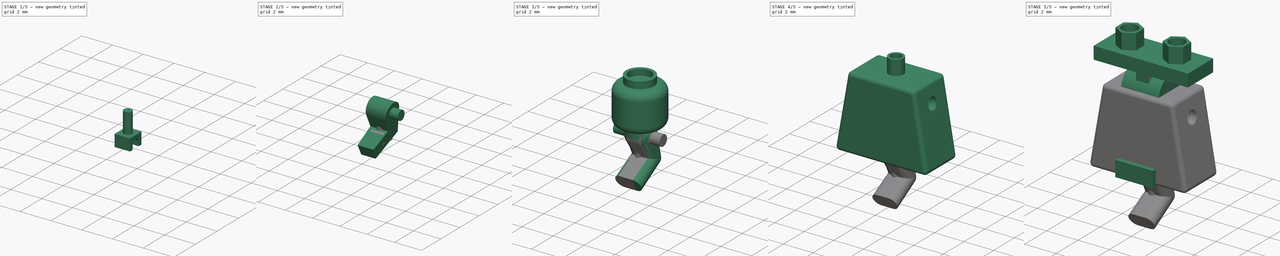
[diagram: build sequence overview — one tinted view per stage of 5, left to right]
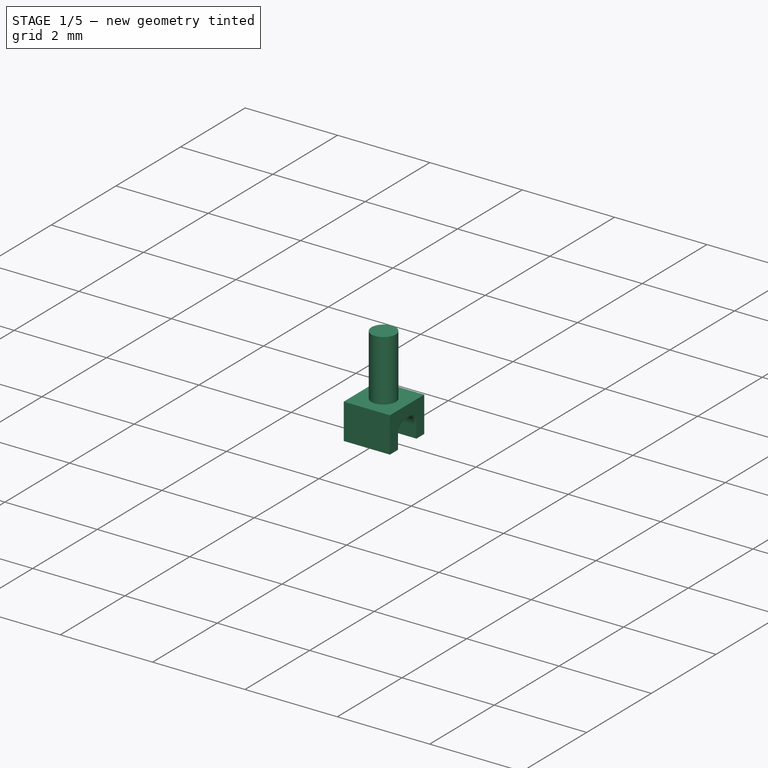
[diagram: stage 1 of 5 — iso view after this stage's code; geometry added in this stage tinted green]
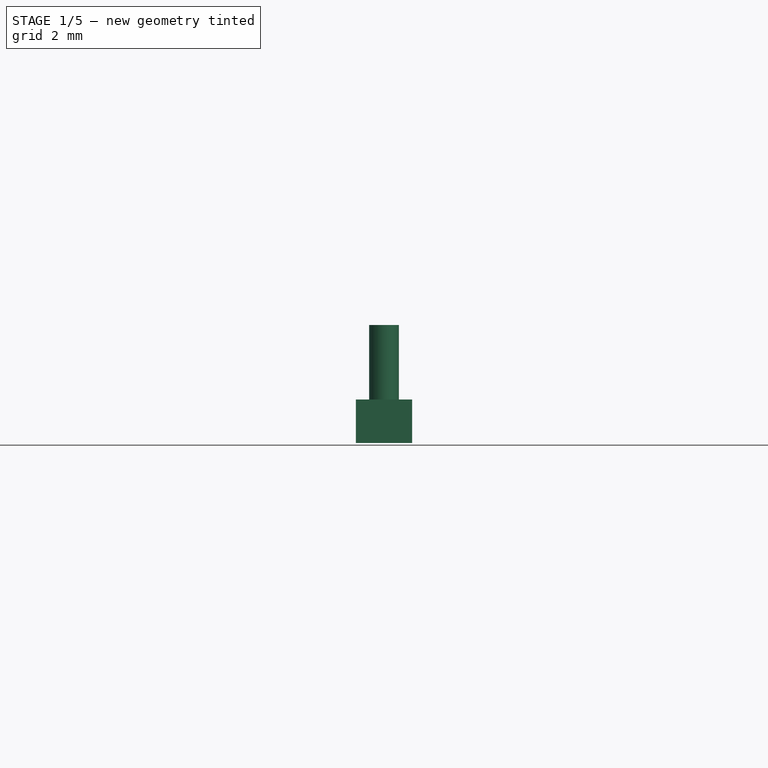
[diagram: stage 1 of 5 — front view after this stage's code; geometry added in this stage tinted green]
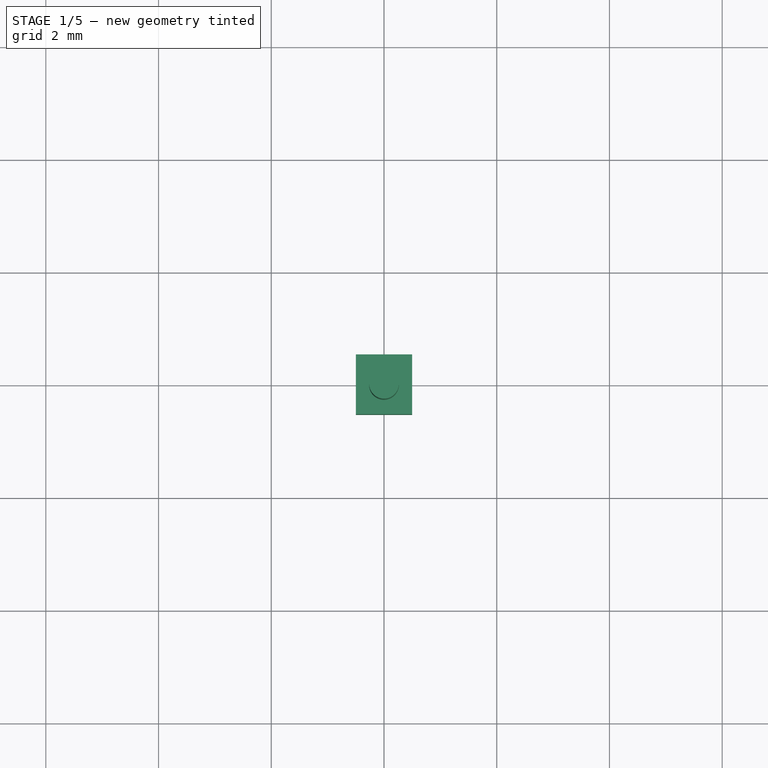
[diagram: stage 1 of 5 — top view after this stage's code; geometry added in this stage tinted green]
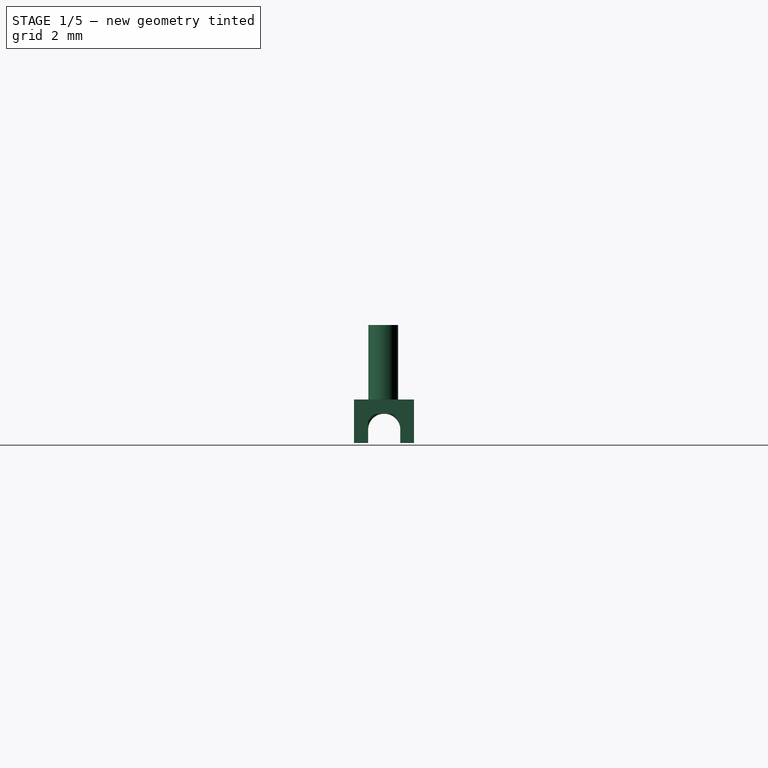
[diagram: stage 1 of 5 — right view after this stage's code; geometry added in this stage tinted green]
FCSTD DOCUMENT  (FreeCAD 0.18.4R)
Label: Lego basic Doll
Comment: From FreeCAD Parts Library: https://github.com/FreeCAD/FreeCAD-library
License: Creative Commons Attribution 3.0
LicenseURL: https://creativecommons.org/licenses/by/3.0/
objects: Sketcher::SketchObject×20, PartDesign::Pad×13, PartDesign::Body×9, PartDesign::Fillet×7, App::Part×5, PartDesign::Pocket×3, PartDesign::Revolution×3, Spreadsheet::Sheet×1, PartDesign::Line×1, PartDesign::Groove×1, PartDesign::Mirrored×1
note: 78 computed .brp shape members not serialized (recipe doc carries the construction recipe); baked Part::Feature solids carry a one-line shape summary decoded from their .brp

FEATURE [PartDesign::Body] Body007
  Group = -> [Sketch013,Pad009,Sketch014,Pocket002,Sketch015,Pad010,Fillet002]
  Origin = -> Origin012
  Placement = pos=(-3.35,0,0) rot=(0,0,1;0rad)
  Tip = -> Fillet002
FEATURE [App::Part] Part002  label="Brazo"
  Group = -> [Body003,Body007]
  License = Creative Commons Attribution 3.0
  LicenseURL = https://creativecommons.org/licenses/by/3.0/
  Origin = -> Origin002
  Placement = pos=(0,0,10.7) rot=(0,0,1;0rad)
FEATURE [Sketcher::SketchObject] Sketch016
  MapMode = 5
  Placement = pos=(0,0,0) rot=(0.57735,0.57735,0.57735;2.0944rad)
  Support = -> [YZ_Plane007]
  sketch-geometry (4):
    g0: LineSegment StartX=0 StartY=0 StartZ=0 EndX=0.263449 EndY=0 EndZ=0
    g1: LineSegment StartX=0.263449 StartY=0 StartZ=0 EndX=0.263449 EndY=-1.5 EndZ=0
    g2: LineSegment StartX=0.263449 StartY=-1.5 StartZ=0 EndX=0 EndY=-1.5 EndZ=0
    g3: LineSegment StartX=0 StartY=-1.5 StartZ=0 EndX=0 EndY=0 EndZ=0
  constraints (10):
    c: Coincident(g0,g1)
    c: Coincident(g1,g2)
    c: Coincident(g2,g3)
    c: Coincident(g3,g0)
    c: Horizontal(g2)
    c: Vertical(g1)
    c: Vertical(g3)
    c: Coincident(g0,g-1)
    c: Horizontal(g0)
    c: DistanceY(g1,g1) = 1.5
FEATURE [PartDesign::Revolution] Revolution001
  Angle = 360
  Axis = (-2e-16,3e-16,1)
  Base = (0,0,0)
  Placement = pos=(0,0,0) rot=(0.57735,0.57735,0.57735;2.0944rad)
  Profile = -> Sketch016
  ReferenceAxis = -> Sketch016 [V_Axis]
  Refine = true
  Reversed = true
FEATURE [Sketcher::SketchObject] Sketch017
  MapMode = 5
  Placement = pos=(0,0,0) rot=(0.57735,0.57735,0.57735;2.0944rad)
  Support = -> [YZ_Plane007]
  sketch-geometry (8):
    g0: LineSegment StartX=-0.518149 StartY=-1.32181 StartZ=0 EndX=0.54456 EndY=-1.32181 EndZ=0
    g1: LineSegment StartX=0.54456 StartY=-1.32181 StartZ=0 EndX=0.54456 EndY=-2.09192 EndZ=0
    g2: LineSegment StartX=0.54456 StartY=-2.09192 StartZ=0 EndX=0.302218 EndY=-2.09192 EndZ=0
    g3: LineSegment StartX=-0.518149 StartY=-2.09192 StartZ=0 EndX=-0.518149 EndY=-1.32181 EndZ=0
    g4: LineSegment StartX=0.302218 StartY=-2.09192 StartZ=0 EndX=0.302218 EndY=-1.5753 EndZ=0
    g5: LineSegment StartX=0.302218 StartY=-1.5753 StartZ=0 EndX=-0.26863 EndY=-1.5753 EndZ=0
    g6: LineSegment StartX=-0.26863 StartY=-1.5753 StartZ=0 EndX=-0.26863 EndY=-2.09192 EndZ=0
    g7: LineSegment StartX=-0.26863 StartY=-2.09192 StartZ=0 EndX=-0.518149 EndY=-2.09192 EndZ=0
  constraints (16):
    c: Coincident(g0,g1)
    c: Coincident(g1,g2)
    c: Coincident(g7,g3)
    c: Coincident(g3,g0)
    c: Horizontal(g0)
    c: Horizontal(g2)
    c: Vertical(g1)
    c: Vertical(g3)
    c: Coincident(g4,g5)
    c: Coincident(g5,g6)
    c: Horizontal(g5)
    c: Vertical(g4)
    c: Vertical(g6)
    c: PointOnObject(g6,g2)
    c: PointOnObject(g2,g4)
    c: Tangent(g2,g7)
FEATURE [PartDesign::Pad] Pad011
  BaseFeature = -> Revolution001
  Length = 1
  Length2 = 100
  Midplane = true
  Placement = pos=(0,0,0) rot=(0.57735,0.57735,0.57735;2.0944rad)
  Profile = -> Sketch017
  Refine = true
  Type = 0
FEATURE [PartDesign::Body] Body002
  Group = -> [Sketch016,Revolution001,Sketch017,Pad011,Fillet003,Fillet004]
  Origin = -> Origin007
  Placement = pos=(3.5,0,0) rot=(0,0,1;0rad)
  Tip = -> Fillet004
FEATURE [Sketcher::SketchObject] Sketch018
  MapMode = 5
  Placement = pos=(0,0,0) rot=(0.57735,0.57735,0.57735;2.0944rad)
  Support = -> [YZ_Plane013]
  sketch-geometry (4):
    g0: LineSegment StartX=0 StartY=0 StartZ=0 EndX=0.263449 EndY=0 EndZ=0
    g1: LineSegment StartX=0.263449 StartY=0 StartZ=0 EndX=0.263449 EndY=-1.5 EndZ=0
    g2: LineSegment StartX=0.263449 StartY=-1.5 StartZ=0 EndX=0 EndY=-1.5 EndZ=0
    g3: LineSegment StartX=0 StartY=-1.5 StartZ=0 EndX=0 EndY=0 EndZ=0
  constraints (10):
    c: Coincident(g0,g1)
    c: Coincident(g1,g2)
    c: Coincident(g2,g3)
    c: Coincident(g3,g0)
    c: Horizontal(g2)
    c: Vertical(g1)
    c: Vertical(g3)
    c: Coincident(g0,g-1)
    c: Horizontal(g0)
    c: DistanceY(g1,g1) = 1.5
FEATURE [Sketcher::SketchObject] Sketch019
  MapMode = 5
  Placement = pos=(0,0,0) rot=(0.57735,0.57735,0.57735;2.0944rad)
  Support = -> [YZ_Plane013]
  sketch-geometry (8):
    g0: LineSegment StartX=-0.518149 StartY=-1.32181 StartZ=0 EndX=0.54456 EndY=-1.32181 EndZ=0
    g1: LineSegment StartX=0.54456 StartY=-1.32181 StartZ=0 EndX=0.54456 EndY=-2.09192 EndZ=0
    g2: LineSegment StartX=0.54456 StartY=-2.09192 StartZ=0 EndX=0.302218 EndY=-2.09192 EndZ=0
    g3: LineSegment StartX=-0.518149 StartY=-2.09192 StartZ=0 EndX=-0.518149 EndY=-1.32181 EndZ=0
    g4: LineSegment StartX=0.302218 StartY=-2.09192 StartZ=0 EndX=0.302218 EndY=-1.5753 EndZ=0
    g5: LineSegment StartX=0.302218 StartY=-1.5753 StartZ=0 EndX=-0.26863 EndY=-1.5753 EndZ=0
    g6: LineSegment StartX=-0.26863 StartY=-1.5753 StartZ=0 EndX=-0.26863 EndY=-2.09192 EndZ=0
    g7: LineSegment StartX=-0.26863 StartY=-2.09192 StartZ=0 EndX=-0.518149 EndY=-2.09192 EndZ=0
  constraints (16):
    c: Coincident(g0,g1)
    c: Coincident(g1,g2)
    c: Coincident(g7,g3)
    c: Coincident(g3,g0)
    c: Horizontal(g0)
    c: Horizontal(g2)
    c: Vertical(g1)
    c: Vertical(g3)
    c: Coincident(g4,g5)
    c: Coincident(g5,g6)
    c: Horizontal(g5)
    c: Vertical(g4)
    c: Vertical(g6)
    c: PointOnObject(g6,g2)
    c: PointOnObject(g2,g4)
    c: Tangent(g2,g7)
FEATURE [PartDesign::Revolution] Revolution002
  Angle = 360
  Axis = (-2e-16,3e-16,1)
  Base = (0,0,0)
  Placement = pos=(0,0,0) rot=(0.57735,0.57735,0.57735;2.0944rad)
  Profile = -> Sketch018
  ReferenceAxis = -> Sketch018 [V_Axis]
  Refine = true
  Reversed = true
FEATURE [PartDesign::Pad] Pad012
  BaseFeature = -> Revolution002
  Length = 1
  Length2 = 100
  Midplane = true
  Placement = pos=(0,0,0) rot=(0.57735,0.57735,0.57735;2.0944rad)
  Profile = -> Sketch019
  Refine = true
  Type = 0
FEATURE [PartDesign::Fillet] Fillet006
  Base = -> Pad012 [Edge7,Edge4,Edge26,Edge27]
  BaseFeature = -> Pad012
  Placement = pos=(0,0,0) rot=(0.57735,0.57735,0.57735;2.0944rad)
  Radius = 0.28
FEATURE [PartDesign::Fillet] Fillet005
  Base = -> Fillet006 [Face8,Face5,Face13,Face12]
  BaseFeature = -> Fillet006
  Placement = pos=(0,0,0) rot=(0.57735,0.57735,0.57735;2.0944rad)
  Radius = 0.05
FEATURE [PartDesign::Body] Body008
  Group = -> [Sketch018,Revolution002,Sketch019,Pad012,Fillet006,Fillet005]
  Origin = -> Origin013
  Placement = pos=(-3.5,0,0) rot=(0,0,1;0rad)
  Tip = -> Fillet005
FEATURE [App::Part] Part003  label="Mano"
  Group = -> [Body002,Body008]
  License = Creative Commons Attribution 3.0
  LicenseURL = https://creativecommons.org/licenses/by/3.0/
  Origin = -> Origin003
  Placement = pos=(0,-0.5,8.7) rot=(-1,0,0;1.0472rad)
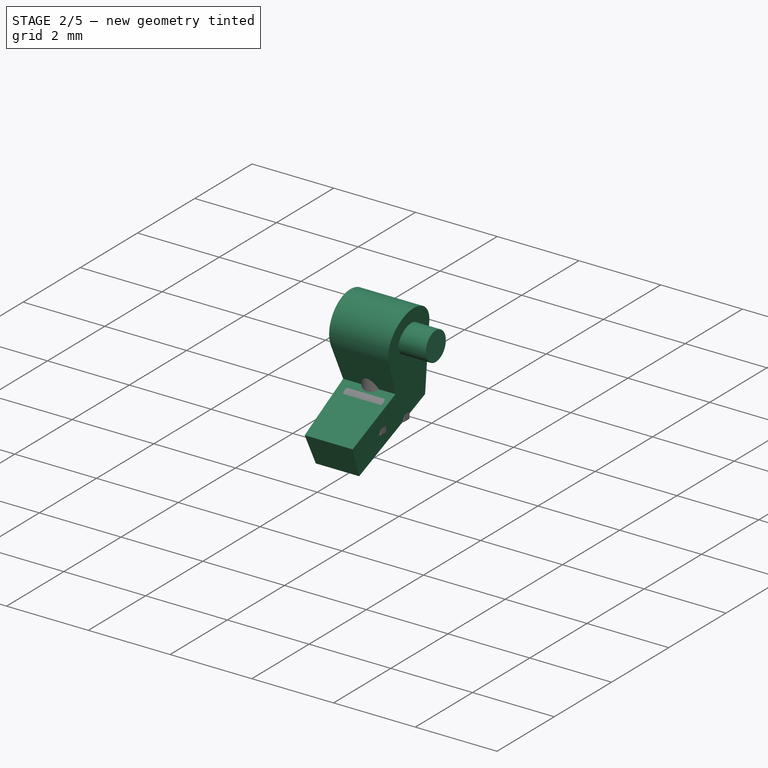
[diagram: stage 2 of 5 — iso view after this stage's code; geometry added in this stage tinted green]
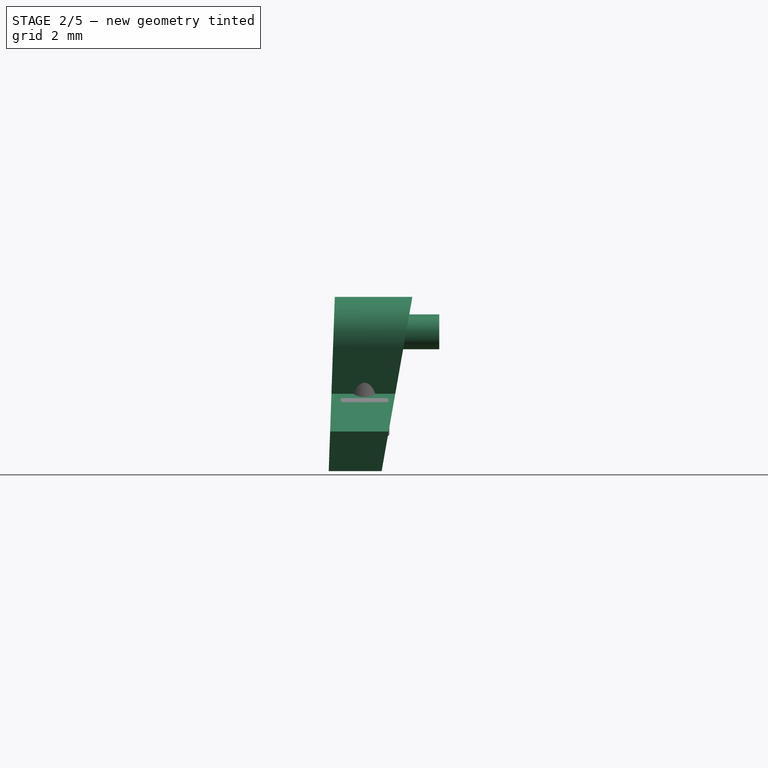
[diagram: stage 2 of 5 — front view after this stage's code; geometry added in this stage tinted green]
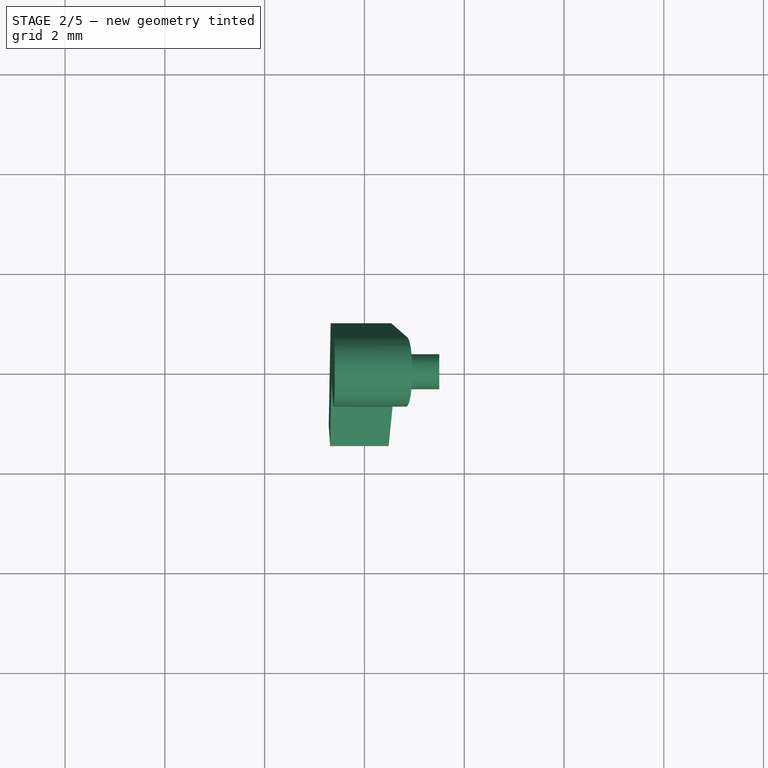
[diagram: stage 2 of 5 — top view after this stage's code; geometry added in this stage tinted green]
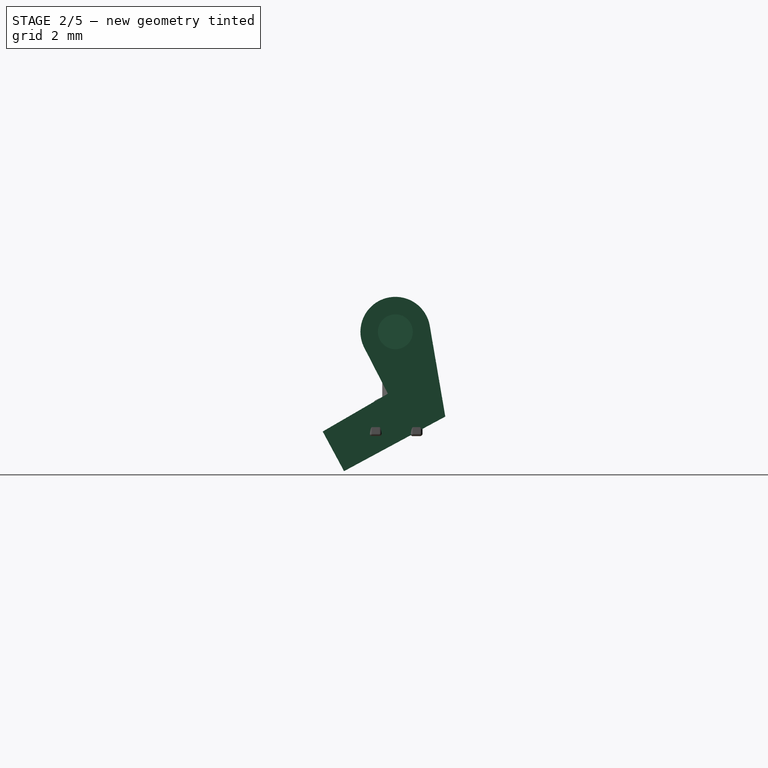
[diagram: stage 2 of 5 — right view after this stage's code; geometry added in this stage tinted green]
FEATURE [PartDesign::Body] Body003
  Group = -> [Sketch010,Pad007,Sketch011,Pocket001,Sketch012,Pad008,Fillet001]
  Origin = -> Origin008
  Placement = pos=(3.25,0,0) rot=(0,0,1;0rad)
  Tip = -> Fillet001
FEATURE [Sketcher::SketchObject] Sketch013
  MapMode = 5
  Placement = pos=(0,0,0) rot=(0.57735,0.57735,0.57735;2.0944rad)
  Support = -> [YZ_Plane012]
  sketch-geometry (6):
    g0: LineSegment StartX=-0.622767 StartY=-0.319626 StartZ=0 EndX=-0.14988 EndY=-1.24101 EndZ=0
    g1: LineSegment StartX=-1.45624 StartY=-1.99889 StartZ=0 EndX=-1.02825 EndY=-2.79304 EndZ=0
    g2: LineSegment StartX=1.00094 StartY=-1.69945 StartZ=0 EndX=0.689974 EndY=0.11805 EndZ=0
    g3: LineSegment StartX=-0.14988 StartY=-1.24101 StartZ=0 EndX=-1.45624 EndY=-1.99889 EndZ=0
    g4: LineSegment StartX=1.00094 StartY=-1.69945 StartZ=0 EndX=-1.02825 EndY=-2.79304 EndZ=0
    g5: ArcOfCircle CenterX=0 CenterY=0 CenterZ=0 NormalX=0 NormalY=0 NormalZ=1 AngleXU=0 Radius=0.7 StartAngle=0.169452 EndAngle=3.61577
  constraints (9):
    c: Coincident(g3,g0)
    c: Coincident(g3,g1)
    c: Coincident(g4,g2)
    c: Coincident(g4,g1)
    c: Perpendicular(g1,g4)
    c: Tangent(g5,g0) = -1.5708
    c: Tangent(g5,g2) = -1.5708
    c: Coincident(g5,g-1)
    c: Radius(g5) = 0.7
FEATURE [Sketcher::SketchObject] Sketch014
  MapMode = 5
  Placement = pos=(0,0,0) rot=(1,0,0;1.5708rad)
  Support = -> [XZ_Plane012]
  sketch-geometry (8):
    g0: LineSegment StartX=-0.56719 StartY=1.46167 StartZ=0 EndX=-0.725199 EndY=-3.06313 EndZ=0
    g1: LineSegment StartX=-0.725199 StartY=-3.06313 StartZ=0 EndX=0.296878 EndY=-3.06313 EndZ=0
    g2: LineSegment StartX=0.296878 StartY=-3.06313 StartZ=0 EndX=1.09472 EndY=1.46167 EndZ=0
    g3: LineSegment StartX=1.09472 StartY=1.46167 StartZ=0 EndX=-0.56719 EndY=1.46167 EndZ=0
    g4: LineSegment StartX=-1.38529 StartY=4.53362 StartZ=0 EndX=1.38529 EndY=4.53362 EndZ=0
    g5: LineSegment StartX=1.38529 StartY=4.53362 StartZ=0 EndX=1.38529 EndY=-4.53362 EndZ=0
    g6: LineSegment StartX=1.38529 StartY=-4.53362 StartZ=0 EndX=-1.38529 EndY=-4.53362 EndZ=0
    g7: LineSegment StartX=-1.38529 StartY=-4.53362 StartZ=0 EndX=-1.38529 EndY=4.53362 EndZ=0
  constraints (17):
    c: Coincident(g0,g1)
    c: Horizontal(g1)
    c: Coincident(g1,g2)
    c: Coincident(g2,g3)
    c: Coincident(g3,g0)
    c: Coincident(g4,g5)
    c: Coincident(g5,g6)
    c: Coincident(g6,g7)
    c: Coincident(g7,g4)
    c: Horizontal(g4)
    c: Horizontal(g6)
    c: Vertical(g5)
    c: Vertical(g7)
    c: Symmetric(g4,g5,g-1)
    c: Horizontal(g3)
    c: Angle(g2,g1) = 1.74533
    c: Angle(g1,g0) = 1.53589
FEATURE [PartDesign::Pad] Pad009
  Length = 2
  Length2 = 100
  Midplane = true
  Placement = pos=(0,0,0) rot=(0.57735,0.57735,0.57735;2.0944rad)
  Profile = -> Sketch013
  Refine = true
  Type = 0
FEATURE [PartDesign::Pocket] Pocket002
  BaseFeature = -> Pad009
  Length = 5
  Length2 = 100
  Midplane = true
  Placement = pos=(0,0,0) rot=(0.57735,0.57735,0.57735;2.0944rad)
  Profile = -> Sketch014
  Refine = true
  Type = 1
FEATURE [Sketcher::SketchObject] Sketch015
  ExternalGeometry = -> [Pocket002]
  MapMode = 5
  Placement = pos=(0,0,0) rot=(0.57735,0.57735,0.57735;2.0944rad)
  Support = -> [YZ_Plane012]
  sketch-geometry (1):
    g0: Circle CenterX=0 CenterY=5e-16 CenterZ=0 NormalX=0 NormalY=0 NormalZ=1 AngleXU=0 Radius=0.35
  constraints (2):
    c: Coincident(g0,g-3)
    c: Radius(g0) = 0.35
FEATURE [PartDesign::Pad] Pad010
  BaseFeature = -> Pocket002
  Length = 1.5
  Length2 = 100
  Placement = pos=(0,0,0) rot=(0.57735,0.57735,0.57735;2.0944rad)
  Profile = -> Sketch015
  Refine = true
  Type = 0
FEATURE [PartDesign::Fillet] Fillet003
  Base = -> Pad011 [Edge7,Edge4,Edge26,Edge27]
  BaseFeature = -> Pad011
  Placement = pos=(0,0,0) rot=(0.57735,0.57735,0.57735;2.0944rad)
  Radius = 0.28
FEATURE [PartDesign::Fillet] Fillet004
  Base = -> Fillet003 [Face8,Face5,Face13,Face12]
  BaseFeature = -> Fillet003
  Placement = pos=(0,0,0) rot=(0.57735,0.57735,0.57735;2.0944rad)
  Radius = 0.05
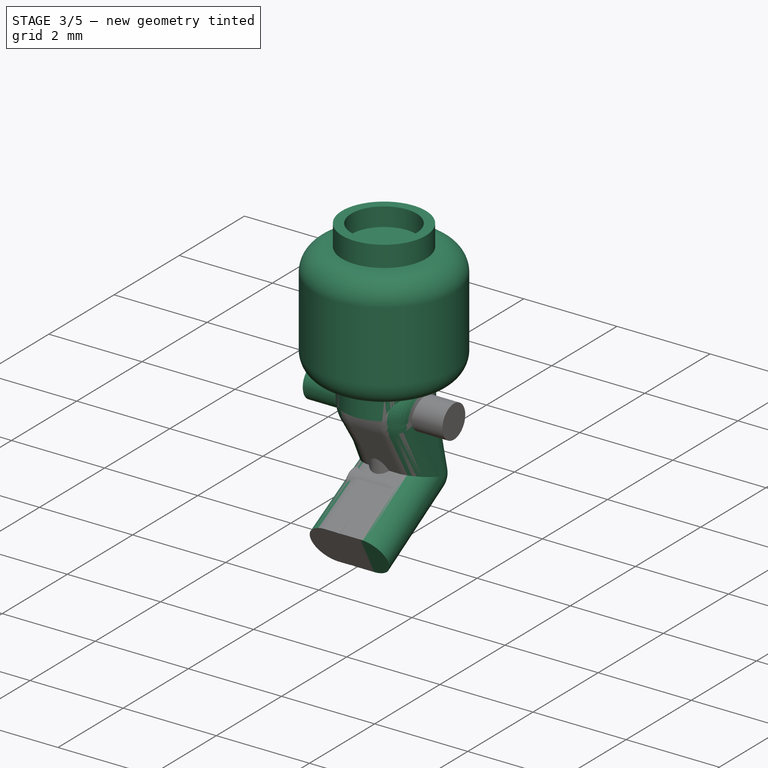
[diagram: stage 3 of 5 — iso view after this stage's code; geometry added in this stage tinted green]
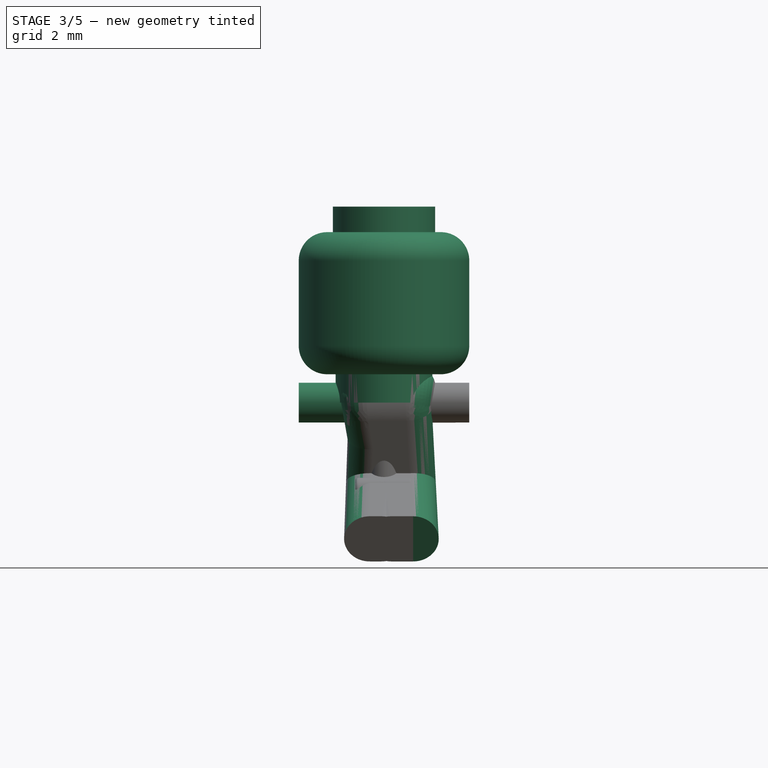
[diagram: stage 3 of 5 — front view after this stage's code; geometry added in this stage tinted green]
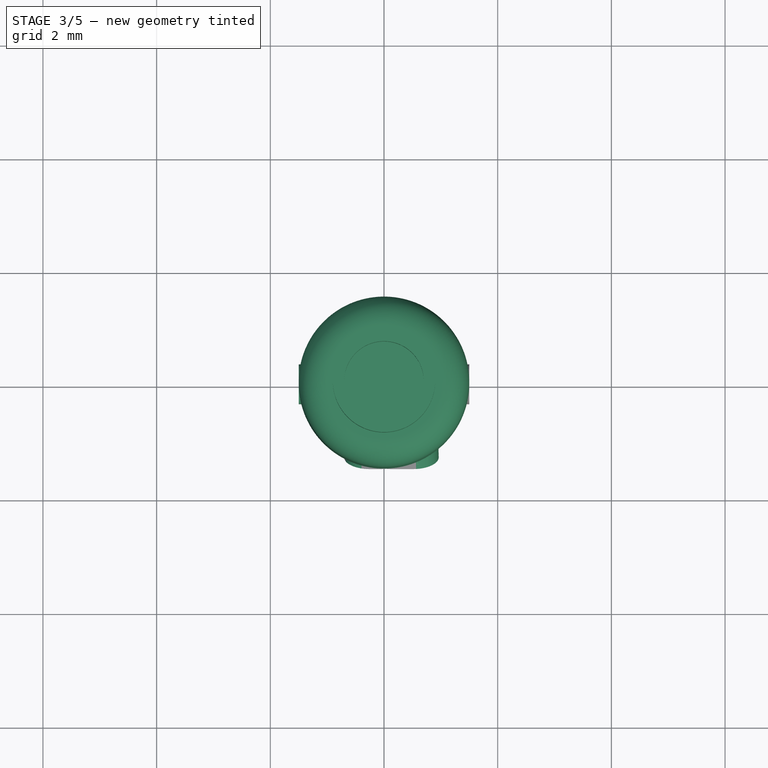
[diagram: stage 3 of 5 — top view after this stage's code; geometry added in this stage tinted green]
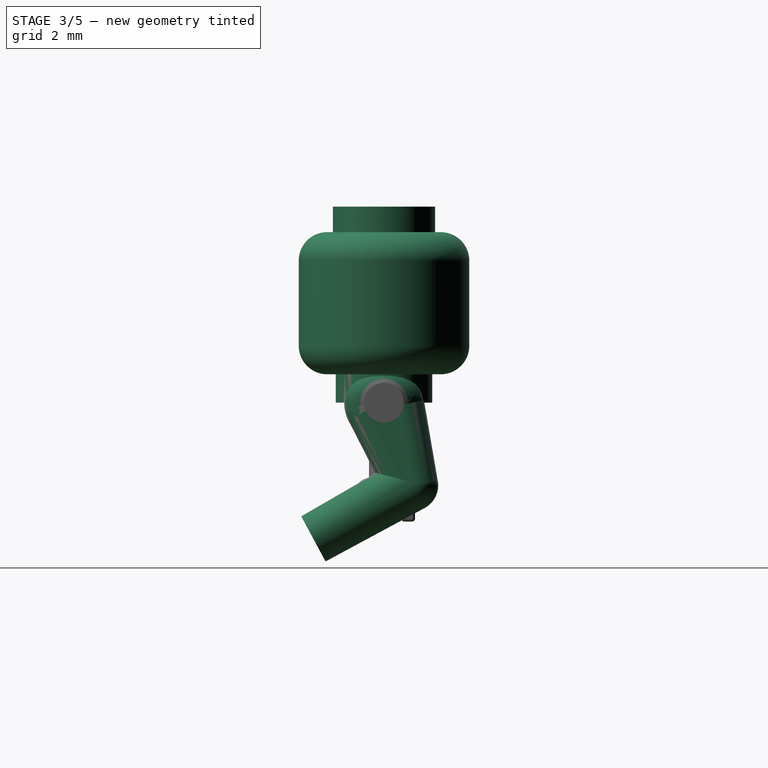
[diagram: stage 3 of 5 — right view after this stage's code; geometry added in this stage tinted green]
FEATURE [PartDesign::Body] Body001
  Group = -> [Sketch005,Pad005,Sketch006,Pocket,Sketch007,Pad006,Fillet,Sketch008,DatumLine,Groove,Mirrored]
  Origin = -> Origin006
  Tip = -> Mirrored
FEATURE [App::Part] Part001  label="Torso"
  Group = -> [Body001]
  License = Creative Commons Attribution 3.0
  LicenseURL = https://creativecommons.org/licenses/by/3.0/
  Origin = -> Origin001
  Placement = pos=(0,0,6.9) rot=(0,0,1;0rad)
FEATURE [Sketcher::SketchObject] Sketch009
  MapMode = 5
  Placement = pos=(0,0,0) rot=(1,0,0;1.5708rad)
  Support = -> [XZ_Plane005]
  sketch-geometry (14):
    g0: LineSegment StartX=0 StartY=1 StartZ=0 EndX=0.55 EndY=1 EndZ=0
    g1: LineSegment StartX=0.55 StartY=1 StartZ=0 EndX=0.55 EndY=0 EndZ=0
    g2: LineSegment StartX=0.55 StartY=0 StartZ=0 EndX=0.85 EndY=0 EndZ=0
    g3: LineSegment StartX=0.85 StartY=0 StartZ=0 EndX=0.85 EndY=0.5 EndZ=0
    g4: LineSegment StartX=0.85 StartY=0.5 StartZ=0 EndX=1 EndY=0.5 EndZ=0
    g5: LineSegment StartX=1.5 StartY=1 StartZ=0 EndX=1.5 EndY=2.5 EndZ=0
    g6: LineSegment StartX=1 StartY=3 StartZ=0 EndX=0.9 EndY=3 EndZ=0
    g7: LineSegment StartX=0.9 StartY=3 StartZ=0 EndX=0.9 EndY=3.45 EndZ=0
    g8: LineSegment StartX=0.9 StartY=3.45 StartZ=0 EndX=0.7 EndY=3.45 EndZ=0
    g9: LineSegment StartX=0.7 StartY=3.45 StartZ=0 EndX=0.7 EndY=3.05 EndZ=0
    g10: LineSegment StartX=0.7 StartY=3.05 StartZ=0 EndX=0 EndY=3.05 EndZ=0
    g11: LineSegment StartX=0 StartY=3.05 StartZ=0 EndX=0 EndY=1 EndZ=0
    g12: ArcOfCircle CenterX=1 CenterY=1 CenterZ=0 NormalX=0 NormalY=0 NormalZ=1 AngleXU=0 Radius=0.5 StartAngle=4.71239 EndAngle=6.28319
    g13: ArcOfCircle CenterX=1 CenterY=2.5 CenterZ=0 NormalX=0 NormalY=0 NormalZ=1 AngleXU=0 Radius=0.5 StartAngle=0 EndAngle=1.5708
  constraints (40):
    c: Horizontal(g0)
    c: Coincident(g0,g1)
    c: PointOnObject(g1,g-1)
    c: Vertical(g1)
    c: Coincident(g1,g2)
    c: PointOnObject(g2,g-1)
    c: Coincident(g2,g3)
    c: Vertical(g3)
    c: Coincident(g3,g4)
    c: Horizontal(g4)
    c: Vertical(g5)
    c: Horizontal(g6)
    c: Coincident(g6,g7)
    c: Vertical(g7)
    c: Coincident(g7,g8)
    c: Coincident(g8,g9)
    c: Vertical(g9)
    c: Coincident(g9,g10)
    c: Coincident(g10,g11)
    c: Vertical(g11)
    c: Coincident(g0,g11)
    c: PointOnObject(g0,g-2)
    c: Horizontal(g10)
    c: Horizontal(g8)
    c: Tangent(g4,g12) = -1.5708
    c: Tangent(g5,g12) = -1.5708
    c: Tangent(g5,g13) = -1.5708
    c: Tangent(g6,g13) = -1.5708
    c: Equal(g13,g12)
    c: Radius(g13) = 0.5
    c: DistanceX(g10,g5) = 1.5
    c: DistanceX(g0,g1) = 0.55
    c: DistanceY(g3,g3) = 0.5
    c: DistanceX(g2,g2) = 0.3
    c: DistanceY(g2,g6) = 3
    c: DistanceX(g10,g8) = 0.7
    c: DistanceY(g9,g9) = 0.4
    c: DistanceY(g7,g7) = 0.45
    c: DistanceX(g10,g7) = 0.9
    c: DistanceY(g1,g1) = 1
FEATURE [PartDesign::Revolution] Revolution
  Angle = 360
  Axis = (0,2e-16,1)
  Base = (0,0,0)
  Placement = pos=(0,0,0) rot=(1,0,0;1.5708rad)
  Profile = -> Sketch009
  ReferenceAxis = -> Sketch009 [V_Axis]
  Refine = true
  Reversed = true
FEATURE [PartDesign::Body] Body
  Group = -> [Sketch009,Revolution]
  Origin = -> Origin005
  Tip = -> Revolution
FEATURE [App::Part] Part004  label="Cabeza"
  Group = -> [Body]
  License = Creative Commons Attribution 3.0
  LicenseURL = https://creativecommons.org/licenses/by/3.0/
  Origin = -> Origin004
  Placement = pos=(0,0,12) rot=(0,0,1;0rad)
FEATURE [Sketcher::SketchObject] Sketch010
  MapMode = 5
  Placement = pos=(0,0,0) rot=(0.57735,0.57735,0.57735;2.0944rad)
  Support = -> [YZ_Plane008]
  sketch-geometry (6):
    g0: LineSegment StartX=-0.622767 StartY=-0.319626 StartZ=0 EndX=-0.14988 EndY=-1.24101 EndZ=0
    g1: LineSegment StartX=-1.45624 StartY=-1.99889 StartZ=0 EndX=-1.02825 EndY=-2.79304 EndZ=0
    g2: LineSegment StartX=1.00094 StartY=-1.69945 StartZ=0 EndX=0.689974 EndY=0.11805 EndZ=0
    g3: LineSegment StartX=-0.14988 StartY=-1.24101 StartZ=0 EndX=-1.45624 EndY=-1.99889 EndZ=0
    g4: LineSegment StartX=1.00094 StartY=-1.69945 StartZ=0 EndX=-1.02825 EndY=-2.79304 EndZ=0
    g5: ArcOfCircle CenterX=0 CenterY=0 CenterZ=0 NormalX=0 NormalY=0 NormalZ=1 AngleXU=0 Radius=0.7 StartAngle=0.169452 EndAngle=3.61577
  constraints (9):
    c: Coincident(g3,g0)
    c: Coincident(g3,g1)
    c: Coincident(g4,g2)
    c: Coincident(g4,g1)
    c: Perpendicular(g1,g4)
    c: Tangent(g5,g0) = -1.5708
    c: Tangent(g5,g2) = -1.5708
    c: Coincident(g5,g-1)
    c: Radius(g5) = 0.7
FEATURE [PartDesign::Pad] Pad007
  Length = 2
  Length2 = 100
  Midplane = true
  Placement = pos=(0,0,0) rot=(0.57735,0.57735,0.57735;2.0944rad)
  Profile = -> Sketch010
  Refine = true
  Type = 0
FEATURE [Sketcher::SketchObject] Sketch011
  MapMode = 5
  Placement = pos=(0,0,0) rot=(1,0,0;1.5708rad)
  Support = -> [XZ_Plane008]
  sketch-geometry (8):
    g0: LineSegment StartX=-1.01303 StartY=1.46493 StartZ=0 EndX=-0.215741 EndY=-3.05672 EndZ=0
    g1: LineSegment StartX=-0.215741 StartY=-3.05672 StartZ=0 EndX=0.997341 EndY=-3.05672 EndZ=0
    g2: LineSegment StartX=0.997341 StartY=-3.05672 StartZ=0 EndX=0.760371 EndY=1.46493 EndZ=0
    g3: LineSegment StartX=0.760371 StartY=1.46493 StartZ=0 EndX=-1.01303 EndY=1.46493 EndZ=0
    g4: LineSegment StartX=-1.38529 StartY=4.53362 StartZ=0 EndX=1.38529 EndY=4.53362 EndZ=0
    g5: LineSegment StartX=1.38529 StartY=4.53362 StartZ=0 EndX=1.38529 EndY=-4.53362 EndZ=0
    g6: LineSegment StartX=1.38529 StartY=-4.53362 StartZ=0 EndX=-1.38529 EndY=-4.53362 EndZ=0
    g7: LineSegment StartX=-1.38529 StartY=-4.53362 StartZ=0 EndX=-1.38529 EndY=4.53362 EndZ=0
  constraints (17):
    c: Coincident(g0,g1)
    c: Horizontal(g1)
    c: Coincident(g1,g2)
    c: Coincident(g2,g3)
    c: Coincident(g3,g0)
    c: Coincident(g4,g5)
    c: Coincident(g5,g6)
    c: Coincident(g6,g7)
    c: Coincident(g7,g4)
    c: Horizontal(g4)
    c: Horizontal(g6)
    c: Vertical(g5)
    c: Vertical(g7)
    c: Symmetric(g4,g5,g-1)
    c: Angle(g1,g0) = 1.74533
    c: Horizontal(g3)
    c: Angle(g2,g1) = 1.51844
FEATURE [PartDesign::Pocket] Pocket001
  BaseFeature = -> Pad007
  Length = 5
  Length2 = 100
  Midplane = true
  Placement = pos=(0,0,0) rot=(0.57735,0.57735,0.57735;2.0944rad)
  Profile = -> Sketch011
  Refine = true
  Type = 1
FEATURE [Sketcher::SketchObject] Sketch012
  ExternalGeometry = -> [Pocket001]
  MapMode = 5
  Placement = pos=(0,0,0) rot=(0.57735,0.57735,0.57735;2.0944rad)
  Support = -> [YZ_Plane008]
  sketch-geometry (1):
    g0: Circle CenterX=0 CenterY=5e-16 CenterZ=0 NormalX=0 NormalY=0 NormalZ=1 AngleXU=0 Radius=0.35
  constraints (2):
    c: Coincident(g0,g-3)
    c: Radius(g0) = 0.35
FEATURE [PartDesign::Pad] Pad008
  BaseFeature = -> Pocket001
  Length = 1.5
  Length2 = 100
  Placement = pos=(0,0,0) rot=(0.57735,0.57735,0.57735;2.0944rad)
  Profile = -> Sketch012
  Refine = true
  Reversed = true
  Type = 0
FEATURE [PartDesign::Fillet] Fillet001
  Base = -> Pad008 [Edge16,Edge15,Edge13,Edge8,Edge7,Edge6,Edge4]
  BaseFeature = -> Pad008
  Placement = pos=(0,0,0) rot=(0.57735,0.57735,0.57735;2.0944rad)
  Radius = 0.45
FEATURE [PartDesign::Fillet] Fillet002
  Base = -> Pad010 [Edge15,Edge7,Edge6,Edge4,Edge14,Edge9,Edge12]
  BaseFeature = -> Pad010
  Placement = pos=(0,0,0) rot=(0.57735,0.57735,0.57735;2.0944rad)
  Radius = 0.45
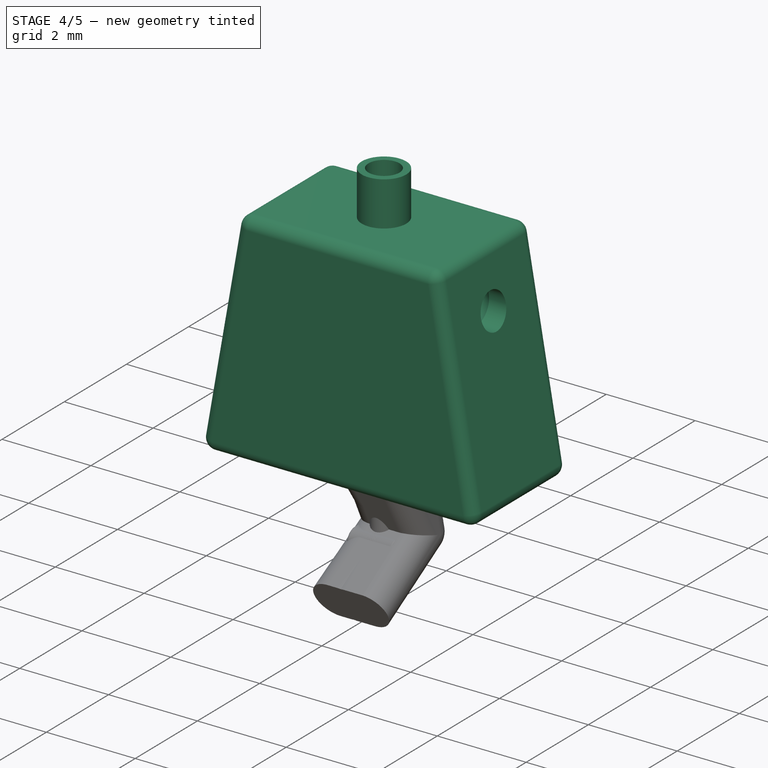
[diagram: stage 4 of 5 — iso view after this stage's code; geometry added in this stage tinted green]
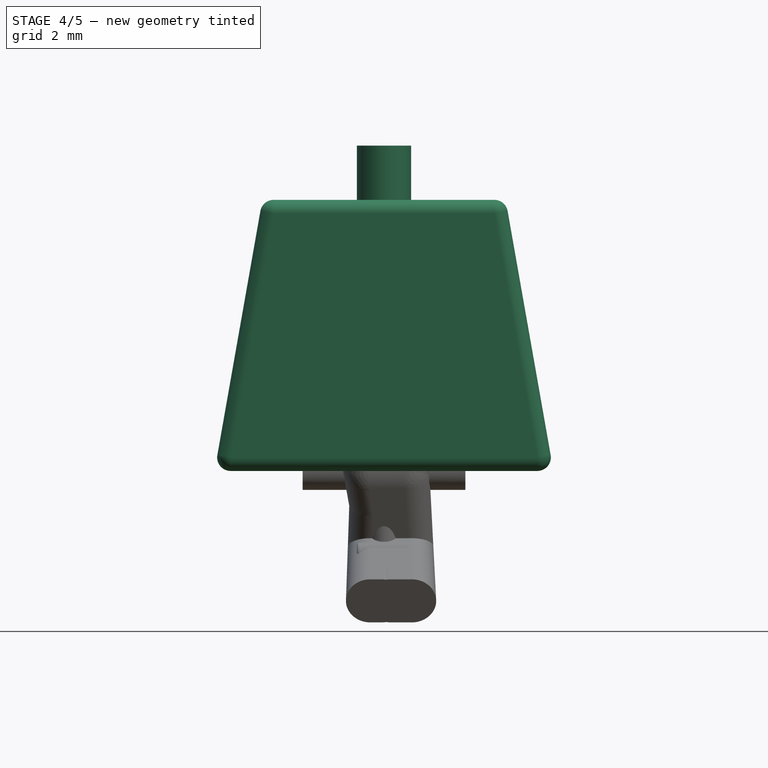
[diagram: stage 4 of 5 — front view after this stage's code; geometry added in this stage tinted green]
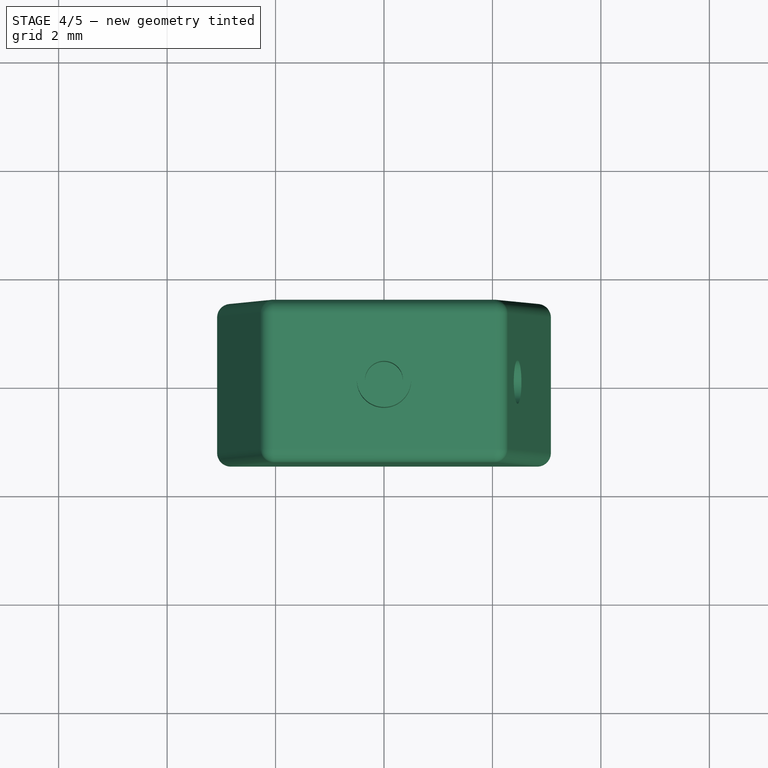
[diagram: stage 4 of 5 — top view after this stage's code; geometry added in this stage tinted green]
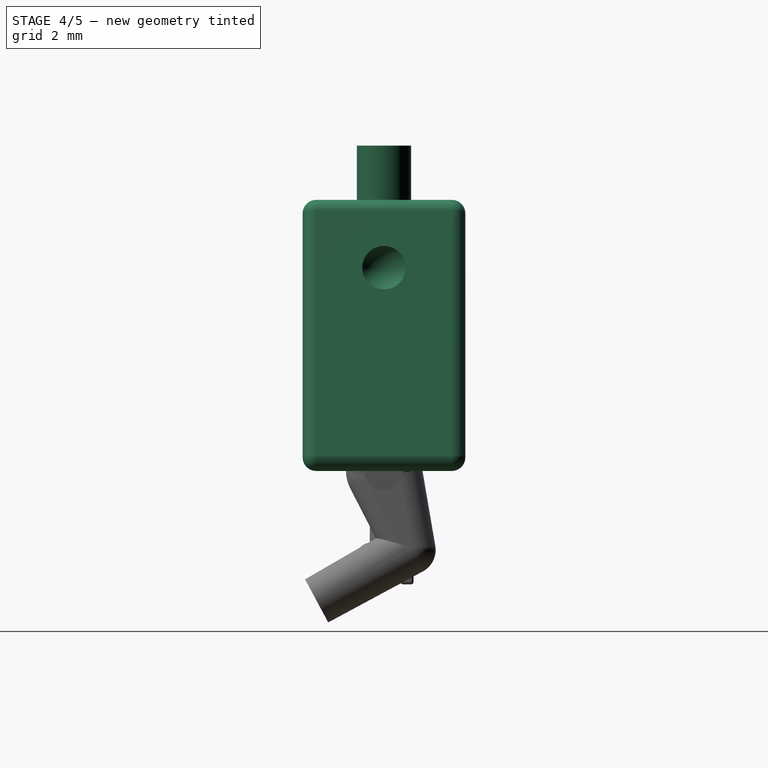
[diagram: stage 4 of 5 — right view after this stage's code; geometry added in this stage tinted green]
FEATURE [PartDesign::Body] Body006
  Group = -> [Sketch,Pad002,Sketch003,Pad003,Sketch004,Pad004]
  Origin = -> Origin011
  Tip = -> Pad004
FEATURE [App::Part] Part  label="Piernas"
  Group = -> [Body004,Body005,Body006]
  License = Creative Commons Attribution 3.0
  LicenseURL = https://creativecommons.org/licenses/by/3.0/
  Origin = -> Origin
FEATURE [Sketcher::SketchObject] Sketch005
  MapMode = 5
  Placement = pos=(0,0,0) rot=(1,0,0;1.5708rad)
  Support = -> [XZ_Plane006]
  sketch-geometry (4):
    g0: LineSegment StartX=-3.125 StartY=0 StartZ=0 EndX=-2.24337 EndY=5 EndZ=0
    g1: LineSegment StartX=-2.24337 StartY=5 StartZ=0 EndX=2.24337 EndY=5 EndZ=0
    g2: LineSegment StartX=2.24337 StartY=5 StartZ=0 EndX=3.125 EndY=0 EndZ=0
    g3: LineSegment StartX=3.125 StartY=0 StartZ=0 EndX=-3.125 EndY=0 EndZ=0
  constraints (11):
    c: PointOnObject(g0,g-1)
    c: Coincident(g0,g1)
    c: Horizontal(g1)
    c: Coincident(g1,g2)
    c: Coincident(g2,g3)
    c: Coincident(g3,g0)
    c: Symmetric(g0,g2,g-2)
    c: Equal(g0,g2)
    c: DistanceX(g3,g3) = 6.25
    c: Angle(g3,g0) = 1.39626
    c: DistanceY(g0,g0) = 5
FEATURE [PartDesign::Pad] Pad005
  Length = 3
  Length2 = 100
  Midplane = true
  Placement = pos=(0,0,0) rot=(1,0,0;1.5708rad)
  Profile = -> Sketch005
  Refine = true
  Type = 0
FEATURE [Sketcher::SketchObject] Sketch006
  MapMode = 5
  Placement = pos=(0,0,0) rot=(1,0,0;3.14159rad)
  Support = -> [Pad005]
  sketch-geometry (14):
    g0: LineSegment StartX=-0.80718 StartY=0.4 StartZ=0 EndX=-1.5 EndY=0.8 EndZ=0
    g1: LineSegment StartX=-1.5 StartY=0.8 StartZ=0 EndX=-2.19282 EndY=0.4 EndZ=0
    g2: LineSegment StartX=-2.19282 StartY=0.4 StartZ=0 EndX=-2.19282 EndY=-0.4 EndZ=0
    g3: LineSegment StartX=-2.19282 StartY=-0.4 StartZ=0 EndX=-1.5 EndY=-0.8 EndZ=0
    g4: LineSegment StartX=-1.5 StartY=-0.8 StartZ=0 EndX=-0.80718 EndY=-0.4 EndZ=0
    g5: LineSegment StartX=-0.80718 StartY=-0.4 StartZ=0 EndX=-0.80718 EndY=0.4 EndZ=0
    g6: Circle [constr] CenterX=-1.5 CenterY=0 CenterZ=0 NormalX=0 NormalY=0 NormalZ=1 AngleXU=0 Radius=0.8
    g7: LineSegment StartX=0.80718 StartY=0.4 StartZ=0 EndX=0.80718 EndY=-0.4 EndZ=0
    g8: LineSegment StartX=0.80718 StartY=-0.4 StartZ=0 EndX=1.5 EndY=-0.8 EndZ=0
    g9: LineSegment StartX=1.5 StartY=-0.8 StartZ=0 EndX=2.19282 EndY=-0.4 EndZ=0
    g10: LineSegment StartX=2.19282 StartY=-0.4 StartZ=0 EndX=2.19282 EndY=0.4 EndZ=0
    g11: LineSegment StartX=2.19282 StartY=0.4 StartZ=0 EndX=1.5 EndY=0.8 EndZ=0
    g12: LineSegment StartX=1.5 StartY=0.8 StartZ=0 EndX=0.80718 EndY=0.4 EndZ=0
    g13: Circle [constr] CenterX=1.5 CenterY=0 CenterZ=0 NormalX=0 NormalY=0 NormalZ=1 AngleXU=0 Radius=0.8
  constraints (33):
    c: Coincident(g0,g1)
    c: Coincident(g1,g2)
    c: Coincident(g2,g3)
    c: Coincident(g3,g4)
    c: Coincident(g4,g5)
    c: Coincident(g5,g0)
    c: Equal(g0, g1-g5) x5
    c: PointOnObject(g0,g6)
    c: PointOnObject(g1,g6)
    c: PointOnObject(g2,g6)
    c: PointOnObject(g3,g6)
    c: PointOnObject(g4,g6)
    c: PointOnObject(g5,g6)
    c: PointOnObject(g6,g-1)
    c: Coincident(g7,g8)
    c: Coincident(g8,g9)
    c: Coincident(g9,g10)
    c: Coincident(g10,g11)
    c: Coincident(g11,g12)
    c: Coincident(g12,g7)
    c: Equal(g7, g8-g12) x5
    c: PointOnObject(g7,g13)
    c: PointOnObject(g8,g13)
    c: PointOnObject(g9,g13)
    c: PointOnObject(g10,g13)
    c: PointOnObject(g11,g13)
    c: PointOnObject(g12,g13)
    c: DistanceX(g6,g13) = 3
    c: Vertical(g5)
    c: Vertical(g10)
    c: Symmetric(g13,g6,g-2)
    c: DistanceY(g2,g2) = 0.8
    c: Equal(g7,g5)
FEATURE [PartDesign::Pocket] Pocket
  BaseFeature = -> Pad005
  Length = 1.1
  Length2 = 100
  Placement = pos=(0,0,0) rot=(1,0,0;1.5708rad)
  Profile = -> Sketch006
  Refine = true
  Type = 0
FEATURE [Sketcher::SketchObject] Sketch007
  MapMode = 5
  Placement = pos=(0,2.2e-15,5) rot=(0,0,1;3.14159rad)
  Support = -> [Pocket]
  sketch-geometry (2):
    g0: Circle CenterX=0 CenterY=0 CenterZ=0 NormalX=0 NormalY=0 NormalZ=1 AngleXU=0 Radius=0.5
    g1: Circle CenterX=0 CenterY=0 CenterZ=0 NormalX=0 NormalY=0 NormalZ=1 AngleXU=0 Radius=0.35
  constraints (4):
    c: Coincident(g0,g-1)
    c: Radius(g0) = 0.5
    c: Coincident(g1,g0)
    c: Radius(g1) = 0.35
FEATURE [PartDesign::Pad] Pad006
  BaseFeature = -> Pocket
  Length = 1
  Length2 = 100
  Placement = pos=(0,0,0) rot=(1,0,0;1.5708rad)
  Profile = -> Sketch007
  Refine = true
  Type = 0
FEATURE [PartDesign::Fillet] Fillet
  Base = -> Pad006 [Edge5,Edge25,Edge24,Edge4,Edge1,Edge3,Edge7,Edge6,Edge22,Edge21,Edge2,Edge20]
  BaseFeature = -> Pad006
  Placement = pos=(0,0,0) rot=(1,0,0;1.5708rad)
  Radius = 0.25
FEATURE [Sketcher::SketchObject] Sketch008
  ExternalGeometry = -> [Fillet]
  MapMode = 5
  Placement = pos=(0,0,0) rot=(1,0,0;1.5708rad)
  Support = -> [XZ_Plane006]
  sketch-geometry (5):
    g0: LineSegment StartX=2.5343 StartY=3.75 StartZ=0 EndX=2.5343 EndY=4.15 EndZ=0
    g1: LineSegment StartX=2.5343 StartY=4.15 StartZ=0 EndX=2.0843 EndY=4.15 EndZ=0
    g2: LineSegment StartX=2.5343 StartY=3.75 StartZ=0 EndX=1.2843 EndY=3.75 EndZ=0
    g3: ArcOfCircle CenterX=1.7843 CenterY=3.75 CenterZ=0 NormalX=0 NormalY=0 NormalZ=1 AngleXU=0 Radius=0.5 StartAngle=0.927295 EndAngle=3.14159
    g4: LineSegment [constr] StartX=2.5343 StartY=3.75 StartZ=0 EndX=2.5343 EndY=3.35 EndZ=0
  constraints (16):
    c: Vertical(g0)
    c: Horizontal(g1)
    c: Coincident(g1,g0)
    c: Coincident(g2,g0)
    c: Horizontal(g2)
    c: PointOnObject(g3,g2)
    c: Coincident(g3,g2)
    c: Coincident(g3,g1)
    c: Radius(g3) = 0.5
    c: DistanceX(g2,g2) = 1.25
    c: Coincident(g4,g0)
    c: Vertical(g4)
    c: Equal(g4,g0)
    c: PointOnObject(g4,g-3)
    c: DistanceY(g-1,g2) = 3.75
    c: DistanceY(g0,g0) = 0.4
FEATURE [PartDesign::Line] DatumLine
  AttacherType = Attacher::AttachEngineLine
  MapMode = 29
  Placement = pos=(0,8e-16,3.75) rot=(0.57735,-0.57735,-0.57735;2.0944rad)
  Support = -> [Sketch008]
FEATURE [PartDesign::Groove] Groove
  Angle = 360
  Axis = (-1,0,0)
  Base = (0,8e-16,3.75)
  BaseFeature = -> Fillet
  Placement = pos=(0,0,0) rot=(1,0,0;1.5708rad)
  Profile = -> Sketch008
  ReferenceAxis = -> DatumLine
  Refine = true
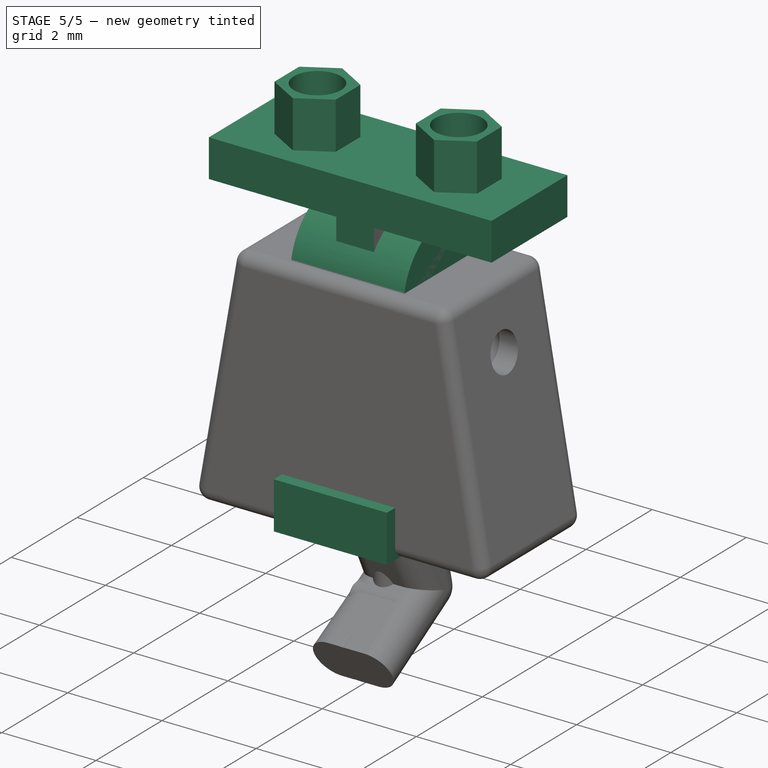
[diagram: stage 5 of 5 — iso view after this stage's code; geometry added in this stage tinted green]
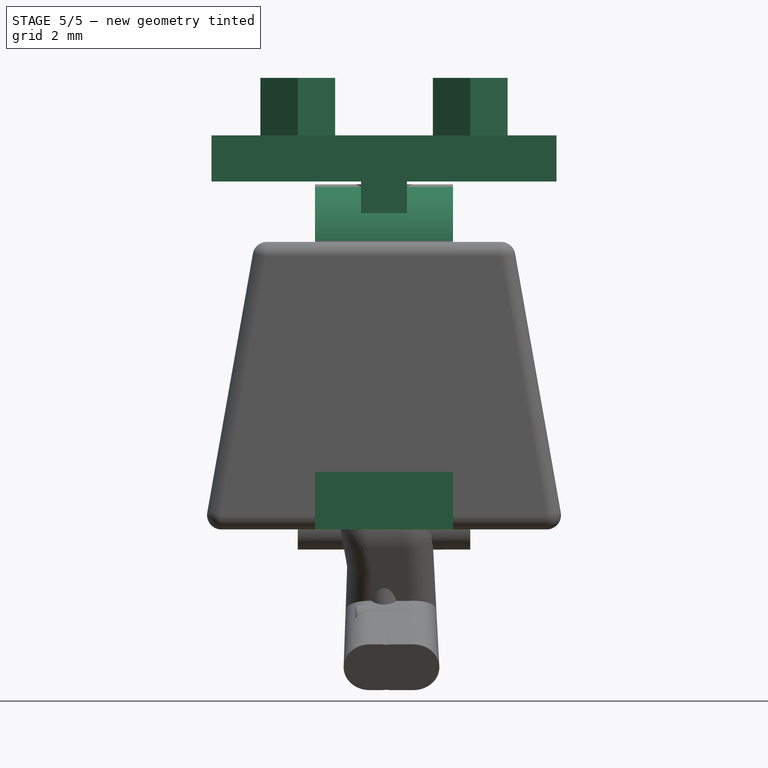
[diagram: stage 5 of 5 — front view after this stage's code; geometry added in this stage tinted green]
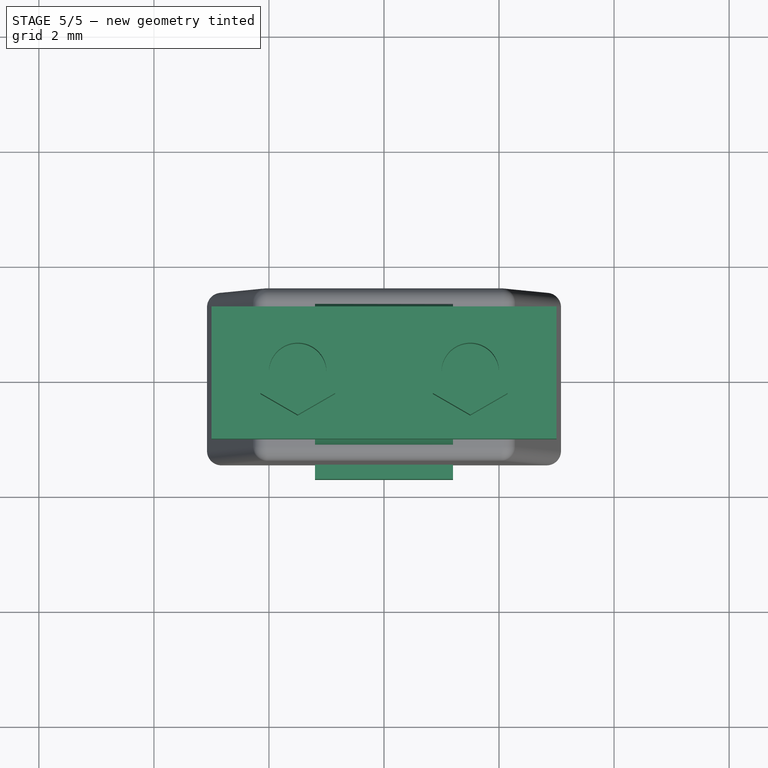
[diagram: stage 5 of 5 — top view after this stage's code; geometry added in this stage tinted green]
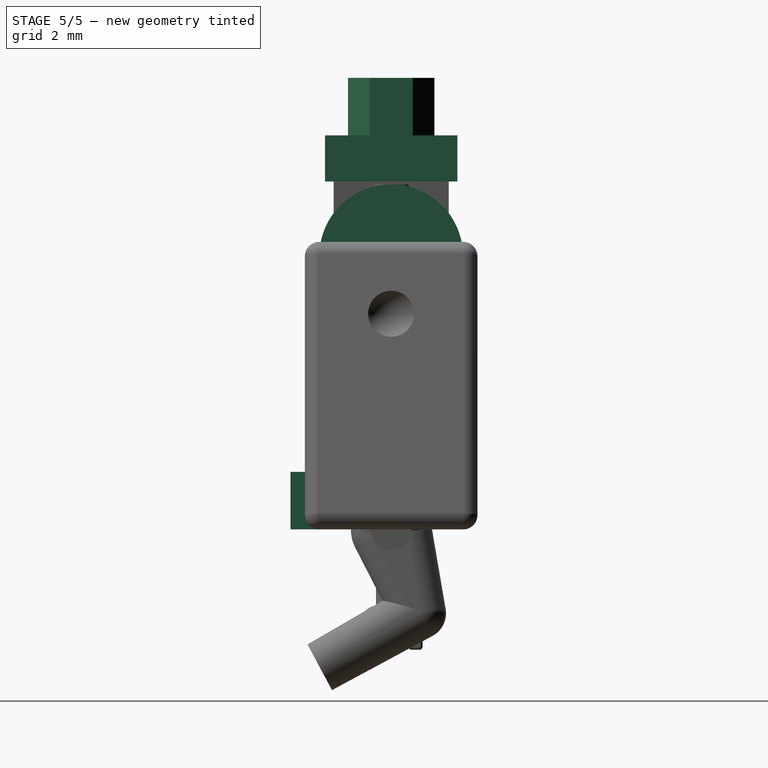
[diagram: stage 5 of 5 — right view after this stage's code; geometry added in this stage tinted green]
FEATURE [Sketcher::SketchObject] Sketch001
  MapMode = 5
  Placement = pos=(0,0,0) rot=(0.57735,0.57735,0.57735;2.0944rad)
  Support = -> [YZ_Plane009]
  sketch-geometry (7):
    g0: LineSegment StartX=-1.75 StartY=0 StartZ=0 EndX=1.25 EndY=0 EndZ=0
    g1: LineSegment StartX=1.25 StartY=0 StartZ=0 EndX=1.25 EndY=4.74999 EndZ=0
    g2: LineSegment StartX=-1.75 StartY=0 StartZ=0 EndX=-1.75 EndY=1 EndZ=0
    g3: LineSegment StartX=-1.75 StartY=1 StartZ=0 EndX=-0.75 EndY=1 EndZ=0
    g4: LineSegment StartX=-0.75 StartY=1 StartZ=0 EndX=-0.75 EndY=3.75 EndZ=0
    g5: ArcOfCircle CenterX=0 CenterY=4.75 CenterZ=0 NormalX=0 NormalY=0 NormalZ=1 AngleXU=0 Radius=1.25 StartAngle=6.28317 EndAngle=10.3521
    g6: LineSegment [constr] StartX=-5.02508e-08 StartY=6 StartZ=0 EndX=-1 EndY=6 EndZ=0
  constraints (23):
    c: PointOnObject(g0,g-1)
    c: PointOnObject(g0,g-1)
    c: Coincident(g0,g1)
    c: Vertical(g1)
    c: Coincident(g0,g2)
    c: Vertical(g2)
    c: Coincident(g2,g3)
    c: Horizontal(g3)
    c: Coincident(g3,g4)
    c: Vertical(g4)
    c: DistanceX(g0,g0) = 3
    c: Tangent(g1,g5)
    c: PointOnObject(g6,g5)
    c: Horizontal(g6)
    c: Tangent(g6,g5)
    c: Equal(g6,g3)
    c: DistanceY(g2,g2) = 1
    c: DistanceX(g3,g0) = 2
    c: Radius(g5) = 1.25
    c: PointOnObject(g5,g-2)
    c: Coincident(g5,g1)
    c: Coincident(g5,g4)
    c: DistanceY(g0,g5) = 4.75
FEATURE [PartDesign::Pad] Pad
  Length = 2.4
  Length2 = 100
  Midplane = true
  Placement = pos=(0,0,0) rot=(0.57735,0.57735,0.57735;2.0944rad)
  Profile = -> Sketch001
  Refine = true
  Reversed = true
  Type = 0
FEATURE [PartDesign::Body] Body004
  Group = -> [Sketch001,Pad]
  Origin = -> Origin009
  Placement = pos=(1.75,0,0) rot=(0,0,1;0rad)
  Tip = -> Pad
FEATURE [Sketcher::SketchObject] Sketch002
  MapMode = 5
  Placement = pos=(0,0,0) rot=(0.57735,0.57735,0.57735;2.0944rad)
  Support = -> [YZ_Plane010]
  sketch-geometry (7):
    g0: LineSegment StartX=-1.75 StartY=0 StartZ=0 EndX=1.25 EndY=0 EndZ=0
    g1: LineSegment StartX=1.25 StartY=0 StartZ=0 EndX=1.25 EndY=4.74999 EndZ=0
    g2: LineSegment StartX=-1.75 StartY=0 StartZ=0 EndX=-1.75 EndY=1 EndZ=0
    g3: LineSegment StartX=-1.75 StartY=1 StartZ=0 EndX=-0.75 EndY=1 EndZ=0
    g4: LineSegment StartX=-0.75 StartY=1 StartZ=0 EndX=-0.75 EndY=3.75 EndZ=0
    g5: ArcOfCircle CenterX=0 CenterY=4.75 CenterZ=0 NormalX=0 NormalY=0 NormalZ=1 AngleXU=0 Radius=1.25 StartAngle=6.28317 EndAngle=10.3521
    g6: LineSegment [constr] StartX=-5.02508e-08 StartY=6 StartZ=0 EndX=-1 EndY=6 EndZ=0
  constraints (23):
    c: PointOnObject(g0,g-1)
    c: PointOnObject(g0,g-1)
    c: Coincident(g0,g1)
    c: Vertical(g1)
    c: Coincident(g0,g2)
    c: Vertical(g2)
    c: Coincident(g2,g3)
    c: Horizontal(g3)
    c: Coincident(g3,g4)
    c: Vertical(g4)
    c: DistanceX(g0,g0) = 3
    c: Tangent(g1,g5)
    c: PointOnObject(g6,g5)
    c: Horizontal(g6)
    c: Tangent(g6,g5)
    c: Equal(g6,g3)
    c: DistanceY(g2,g2) = 1
    c: DistanceX(g3,g0) = 2
    c: Radius(g5) = 1.25
    c: PointOnObject(g5,g-2)
    c: Coincident(g5,g1)
    c: Coincident(g5,g4)
    c: DistanceY(g0,g5) = 4.75
FEATURE [PartDesign::Pad] Pad001
  Length = 2.4
  Length2 = 100
  Midplane = true
  Placement = pos=(0,0,0) rot=(0.57735,0.57735,0.57735;2.0944rad)
  Profile = -> Sketch002
  Refine = true
  Reversed = true
  Type = 0
FEATURE [PartDesign::Body] Body005
  Group = -> [Sketch002,Pad001]
  Origin = -> Origin010
  Placement = pos=(-1.75,0,0) rot=(0,0,1;0rad)
  Tip = -> Pad001
FEATURE [Spreadsheet::Sheet] Spreadsheet
FEATURE [Sketcher::SketchObject] Sketch
  MapMode = 5
  Placement = pos=(0,0,0) rot=(0.57735,0.57735,0.57735;2.0944rad)
  Support = -> [YZ_Plane011]
  sketch-geometry (4):
    g0: LineSegment StartX=1 StartY=6.05 StartZ=0 EndX=-1 EndY=6.05 EndZ=0
    g1: LineSegment StartX=-1 StartY=4.75 StartZ=0 EndX=-1 EndY=6.05 EndZ=0
    g2: LineSegment StartX=1 StartY=4.75 StartZ=0 EndX=1 EndY=6.05 EndZ=0
    g3: ArcOfCircle CenterX=0 CenterY=4.75 CenterZ=0 NormalX=0 NormalY=0 NormalZ=1 AngleXU=0 Radius=1 StartAngle=3.14159 EndAngle=6.28319
  constraints (11):
    c: Vertical(g2)
    c: Vertical(g1)
    c: Coincident(g1,g0)
    c: Coincident(g0,g2)
    c: Horizontal(g0)
    c: PointOnObject(g3,g-2)
    c: Radius(g3) = 1
    c: Tangent(g3,g2) = -1.5708
    c: Tangent(g3,g1) = 1.5708
    c: DistanceY(g-1,g3) = 4.75
    c: DistanceY(g2,g2) = 1.3
FEATURE [PartDesign::Pad] Pad002
  Length = 0.8
  Length2 = 100
  Midplane = true
  Placement = pos=(0,0,0) rot=(0.57735,0.57735,0.57735;2.0944rad)
  Profile = -> Sketch
  Refine = true
  Type = 0
FEATURE [Sketcher::SketchObject] Sketch003
  ExternalGeometry = -> [Pad002]
  MapMode = 5
  Placement = pos=(0,0,0) rot=(0.57735,0.57735,0.57735;2.0944rad)
  Support = -> [YZ_Plane011]
  sketch-geometry (5):
    g0: LineSegment StartX=-1.15 StartY=6.85 StartZ=0 EndX=1.15 EndY=6.85 EndZ=0
    g1: LineSegment StartX=1.15 StartY=6.85 StartZ=0 EndX=1.15 EndY=6.05 EndZ=0
    g2: LineSegment StartX=1.15 StartY=6.05 StartZ=0 EndX=-1.15 EndY=6.05 EndZ=0
    g3: LineSegment StartX=-1.15 StartY=6.05 StartZ=0 EndX=-1.15 EndY=6.85 EndZ=0
    g4: LineSegment [constr] StartX=0 StartY=6.85 StartZ=0 EndX=0 EndY=6.05 EndZ=0
  constraints (15):
    c: Coincident(g0,g1)
    c: Coincident(g1,g2)
    c: Coincident(g2,g3)
    c: Coincident(g3,g0)
    c: Horizontal(g0)
    c: Horizontal(g2)
    c: Vertical(g1)
    c: Vertical(g3)
    c: PointOnObject(g-4,g2)
    c: PointOnObject(g4,g0)
    c: PointOnObject(g4,g2)
    c: Symmetric(g0,g0,g4)
    c: PointOnObject(g4,g-2)
    c: DistanceY(g1,g1) = 0.8
    c: DistanceX(g2,g2) = 2.3
FEATURE [PartDesign::Pad] Pad003
  BaseFeature = -> Pad002
  Length = 6
  Length2 = 100
  Midplane = true
  Placement = pos=(0,0,0) rot=(0.57735,0.57735,0.57735;2.0944rad)
  Profile = -> Sketch003
  Refine = true
  Type = 0
FEATURE [Sketcher::SketchObject] Sketch004
  MapMode = 5
  Placement = pos=(-1.9e-15,3e-15,6.85) rot=(0,0,-1;1.5708rad)
  Support = -> [Pad003]
  sketch-geometry (16):
    g0: LineSegment StartX=0.375 StartY=0.850481 StartZ=0 EndX=0.75 EndY=1.5 EndZ=0
    g1: LineSegment StartX=0.75 StartY=1.5 StartZ=0 EndX=0.375 EndY=2.14952 EndZ=0
    g2: LineSegment StartX=0.375 StartY=2.14952 StartZ=0 EndX=-0.375 EndY=2.14952 EndZ=0
    g3: LineSegment StartX=-0.375 StartY=2.14952 StartZ=0 EndX=-0.75 EndY=1.5 EndZ=0
    g4: LineSegment StartX=-0.75 StartY=1.5 StartZ=0 EndX=-0.375 EndY=0.850481 EndZ=0
    g5: LineSegment StartX=-0.375 StartY=0.850481 StartZ=0 EndX=0.375 EndY=0.850481 EndZ=0
    g6: Circle [constr] CenterX=0 CenterY=1.5 CenterZ=0 NormalX=0 NormalY=0 NormalZ=1 AngleXU=0 Radius=0.75
    g7: LineSegment StartX=0.375 StartY=-2.14952 StartZ=0 EndX=0.75 EndY=-1.5 EndZ=0
    g8: LineSegment StartX=0.75 StartY=-1.5 StartZ=0 EndX=0.375 EndY=-0.850481 EndZ=0
    g9: LineSegment StartX=0.375 StartY=-0.850481 StartZ=0 EndX=-0.375 EndY=-0.850481 EndZ=0
    g10: LineSegment StartX=-0.375 StartY=-0.850481 StartZ=0 EndX=-0.75 EndY=-1.5 EndZ=0
    g11: LineSegment StartX=-0.75 StartY=-1.5 StartZ=0 EndX=-0.375 EndY=-2.14952 EndZ=0
    g12: LineSegment StartX=-0.375 StartY=-2.14952 StartZ=0 EndX=0.375 EndY=-2.14952 EndZ=0
    g13: Circle [constr] CenterX=0 CenterY=-1.5 CenterZ=0 NormalX=0 NormalY=0 NormalZ=1 AngleXU=0 Radius=0.75
    g14: Circle CenterX=0 CenterY=1.5 CenterZ=0 NormalX=0 NormalY=0 NormalZ=1 AngleXU=0 Radius=0.5
    g15: Circle CenterX=0 CenterY=-1.5 CenterZ=0 NormalX=0 NormalY=0 NormalZ=1 AngleXU=0 Radius=0.5
  constraints (37):
    c: Coincident(g0,g1)
    c: Coincident(g1,g2)
    c: Coincident(g2,g3)
    c: Coincident(g3,g4)
    c: Coincident(g4,g5)
    c: Coincident(g5,g0)
    c: Equal(g0, g1-g5) x5
    c: PointOnObject(g0,g6)
    c: PointOnObject(g1,g6)
    c: PointOnObject(g2,g6)
    c: PointOnObject(g3,g6)
    c: PointOnObject(g4,g6)
    c: PointOnObject(g5,g6)
    c: PointOnObject(g6,g-2)
    c: Coincident(g7,g8)
    c: Coincident(g8,g9)
    c: Coincident(g9,g10)
    c: Coincident(g10,g11)
    c: Coincident(g11,g12)
    c: Coincident(g12,g7)
    c: Equal(g7, g8-g12) x5
    c: PointOnObject(g7,g13)
    c: PointOnObject(g8,g13)
    c: PointOnObject(g9,g13)
    c: PointOnObject(g10,g13)
    c: PointOnObject(g11,g13)
    c: PointOnObject(g12,g13)
    c: Horizontal(g12)
    c: Horizontal(g5)
    c: Equal(g5,g9)
    c: Coincident(g14,g6)
    c: Coincident(g15,g13)
    c: Equal(g14,g15)
    c: Radius(g15) = 0.5
    c: DistanceX(g9,g9) = 0.75
    c: Symmetric(g14,g15,g-1)
    c: DistanceY(g15,g14) = 3
FEATURE [PartDesign::Pad] Pad004
  BaseFeature = -> Pad003
  Length = 1
  Length2 = 100
  Placement = pos=(0,0,0) rot=(0.57735,0.57735,0.57735;2.0944rad)
  Profile = -> Sketch004
  Refine = true
  Type = 0
FEATURE [PartDesign::Mirrored] Mirrored
  BaseFeature = -> Groove
  MirrorPlane = -> Sketch008 [V_Axis]
  Originals = -> [Groove]
  Placement = pos=(0,0,0) rot=(1,0,0;1.5708rad)
  Refine = true
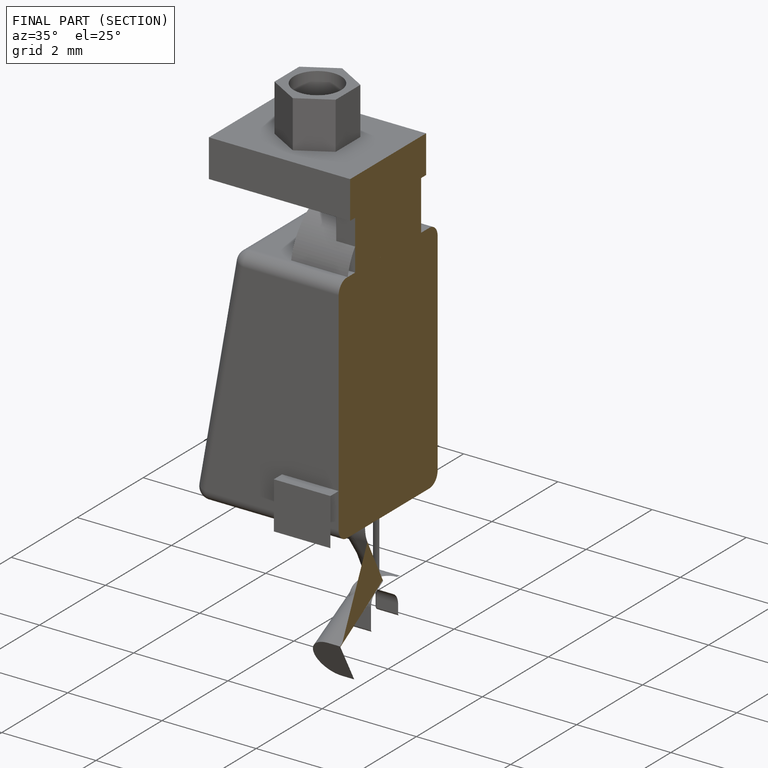
[diagram: finished part — half-section view (interior)]
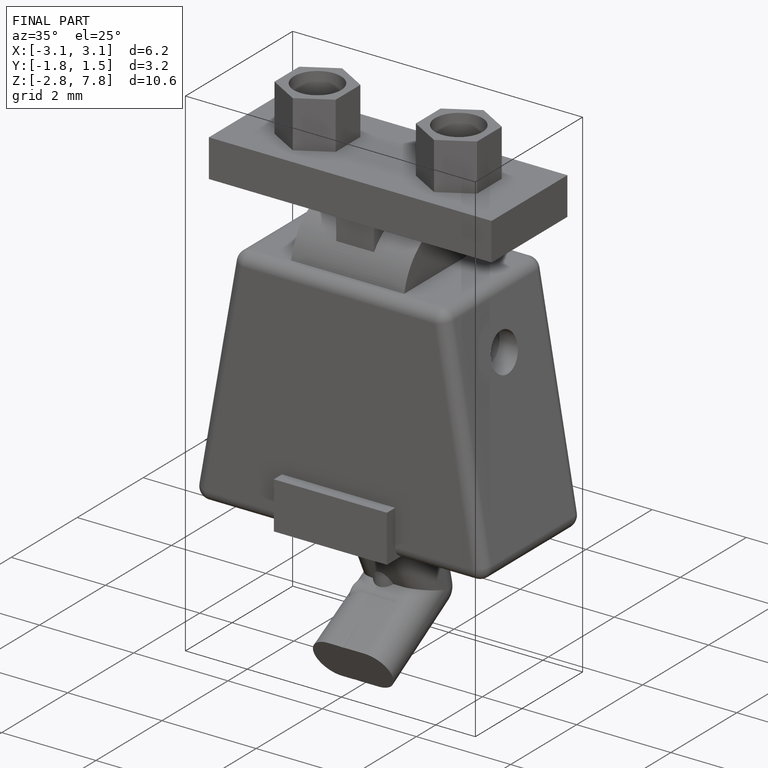
[diagram: finished part — iso view with bounding-box wireframe]
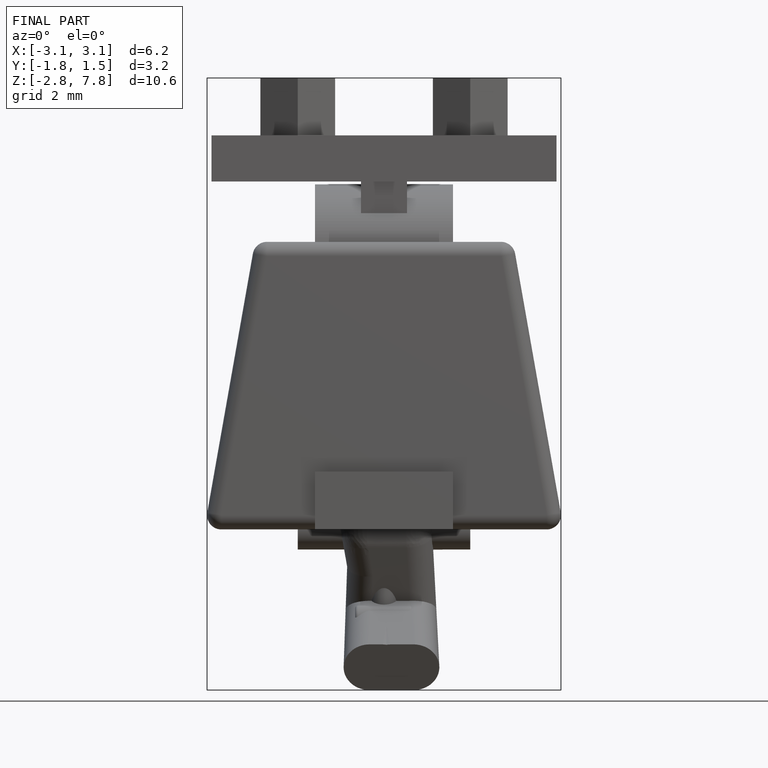
[diagram: finished part — front view with bounding-box wireframe]
